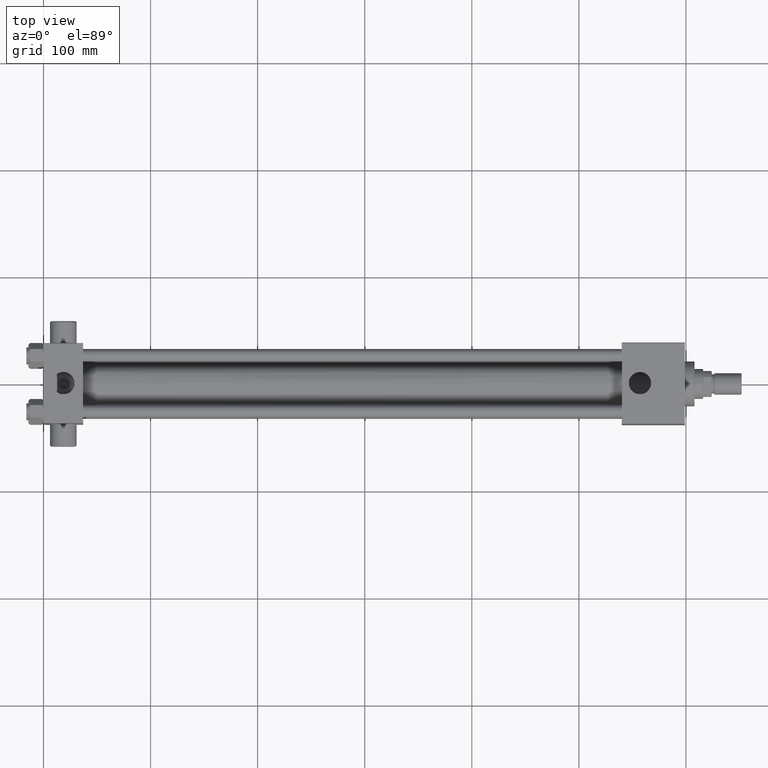
[diagram: clean part render]
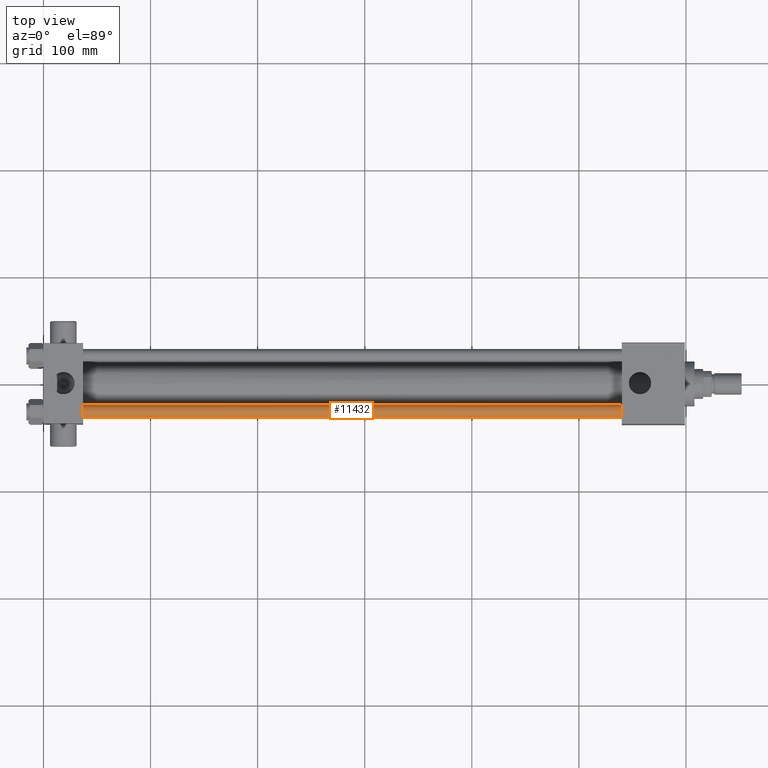
[diagram: same view with one face highlighted and labeled with its STEP entity id]
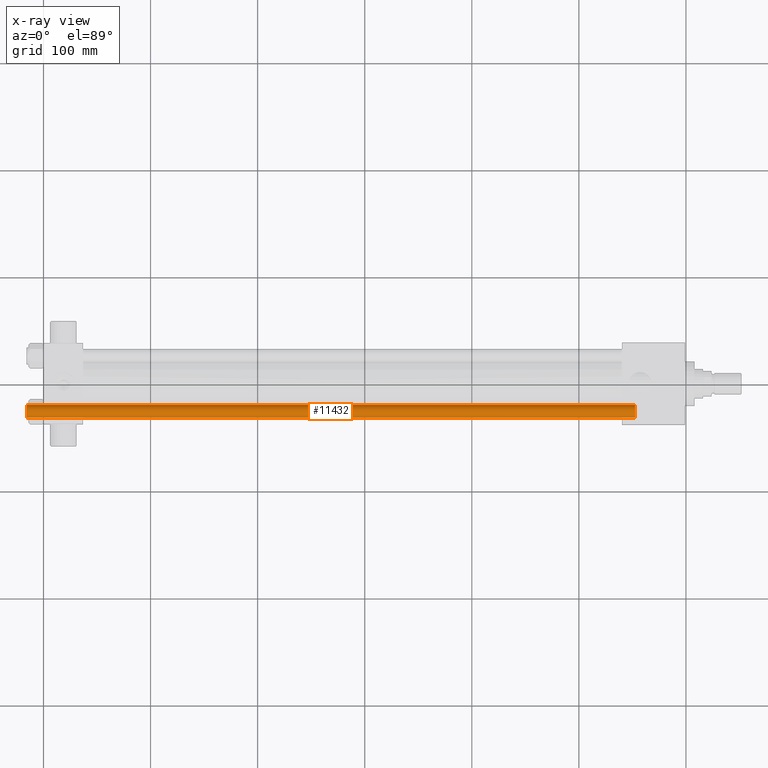
[diagram: x-ray of the same camera — body ghosted, the highlighted face saturated]
A machine part, top view. The second image highlights one B-rep face of the part: STEP entity #11432.
The next image is the same camera in x-ray: the body ghosted, the highlighted face saturated — about 0% of this face is hidden behind the body in this view.
In plain terms, the highlighted cylindrical surface (edge-blend (fillet) strip) has radius 6 mm, axis along (1, -0, -0).
Its self-contained STEP definition (entity closure, byte-faithful):
#1288 = DIRECTION ( 'NONE',  ( 1.000000000000000000, 0.000000000000000000, 0.000000000000000000 ) ) ;
#2099 = EDGE_LOOP ( 'NONE', ( #42581, #36193, #37785, #2671 ) ) ;
#2671 = ORIENTED_EDGE ( 'NONE', *, *, #28046, .T. ) ;
#4031 = CARTESIAN_POINT ( 'NONE',  ( 0.000000000000000000, 0.000000000000000000, 0.5000000000000559552 ) ) ;
#4516 = DIRECTION ( 'NONE',  ( -0.000000000000000000, -0.000000000000000000, 1.000000000000000000 ) ) ;
#4569 = DIRECTION ( 'NONE',  ( -0.000000000000000000, -0.000000000000000000, -1.000000000000000000 ) ) ;
#4586 = AXIS2_PLACEMENT_3D ( 'NONE', #4031, #4516, #1288 ) ;
#6389 = VERTEX_POINT ( 'NONE', #21955 ) ;
#7264 = LINE ( 'NONE', #33995, #38948 ) ;
#9618 = AXIS2_PLACEMENT_3D ( 'NONE', #43737, #10044, #36284 ) ;
#9925 = CARTESIAN_POINT ( 'NONE',  ( -6.000000000000000888, 0.000000000000000000, 0.5000000000000559552 ) ) ;
#10044 = DIRECTION ( 'NONE',  ( 0.000000000000000000, 0.000000000000000000, -1.000000000000000000 ) ) ;
#11358 = CARTESIAN_POINT ( 'NONE',  ( 0.000000000000000000, 0.000000000000000000, 569.0000000000000000 ) ) ;
#11432 = ADVANCED_FACE ( 'NONE', ( #23499 ), #31154, .T. ) ;
#11701 = DIRECTION ( 'NONE',  ( -0.000000000000000000, -0.000000000000000000, -1.000000000000000000 ) ) ;
#21955 = CARTESIAN_POINT ( 'NONE',  ( -6.000000000000000888, 0.000000000000000000, 568.5000000000001137 ) ) ;
#22261 = VECTOR ( 'NONE', #4569, 1000.000000000000000 ) ;
#23499 = FACE_OUTER_BOUND ( 'NONE', #2099, .T. ) ;
#24649 = CIRCLE ( 'NONE', #9618, 6.000000000000000888 ) ;
#26466 = DIRECTION ( 'NONE',  ( -0.000000000000000000, -0.000000000000000000, -1.000000000000000000 ) ) ;
#26877 = CARTESIAN_POINT ( 'NONE',  ( 6.000000000000000888, 7.347880794884120722E-16, 569.0000000000000000 ) ) ;
#28046 = EDGE_CURVE ( 'NONE', #32901, #30251, #40163, .T. ) ;
#30251 = VERTEX_POINT ( 'NONE', #48231 ) ;
#31154 = CYLINDRICAL_SURFACE ( 'NONE', #38606, 6.000000000000000888 ) ;
#32901 = VERTEX_POINT ( 'NONE', #9925 ) ;
#33995 = CARTESIAN_POINT ( 'NONE',  ( -6.000000000000000888, 0.000000000000000000, 569.0000000000000000 ) ) ;
#36193 = ORIENTED_EDGE ( 'NONE', *, *, #41231, .T. ) ;
#36284 = DIRECTION ( 'NONE',  ( 1.000000000000000000, 0.000000000000000000, 0.000000000000000000 ) ) ;
#36463 = EDGE_CURVE ( 'NONE', #37495, #30251, #42220, .T. ) ;
#37495 = VERTEX_POINT ( 'NONE', #43402 ) ;
#37785 = ORIENTED_EDGE ( 'NONE', *, *, #43302, .T. ) ;
#38606 = AXIS2_PLACEMENT_3D ( 'NONE', #11358, #26466, #41562 ) ;
#38948 = VECTOR ( 'NONE', #11701, 1000.000000000000000 ) ;
#40163 = CIRCLE ( 'NONE', #4586, 6.000000000000000888 ) ;
#41231 = EDGE_CURVE ( 'NONE', #37495, #6389, #24649, .T. ) ;
#41562 = DIRECTION ( 'NONE',  ( -1.000000000000000000, 0.000000000000000000, 0.000000000000000000 ) ) ;
#42220 = LINE ( 'NONE', #26877, #22261 ) ;
#42581 = ORIENTED_EDGE ( 'NONE', *, *, #36463, .F. ) ;
#43302 = EDGE_CURVE ( 'NONE', #6389, #32901, #7264, .T. ) ;
#43402 = CARTESIAN_POINT ( 'NONE',  ( 6.000000000000000888, 7.347880794884120722E-16, 568.5000000000001137 ) ) ;
#43737 = CARTESIAN_POINT ( 'NONE',  ( 0.000000000000000000, 0.000000000000000000, 568.5000000000001137 ) ) ;
#48231 = CARTESIAN_POINT ( 'NONE',  ( 6.000000000000000888, 7.347880794884120722E-16, 0.5000000000000559552 ) ) ;